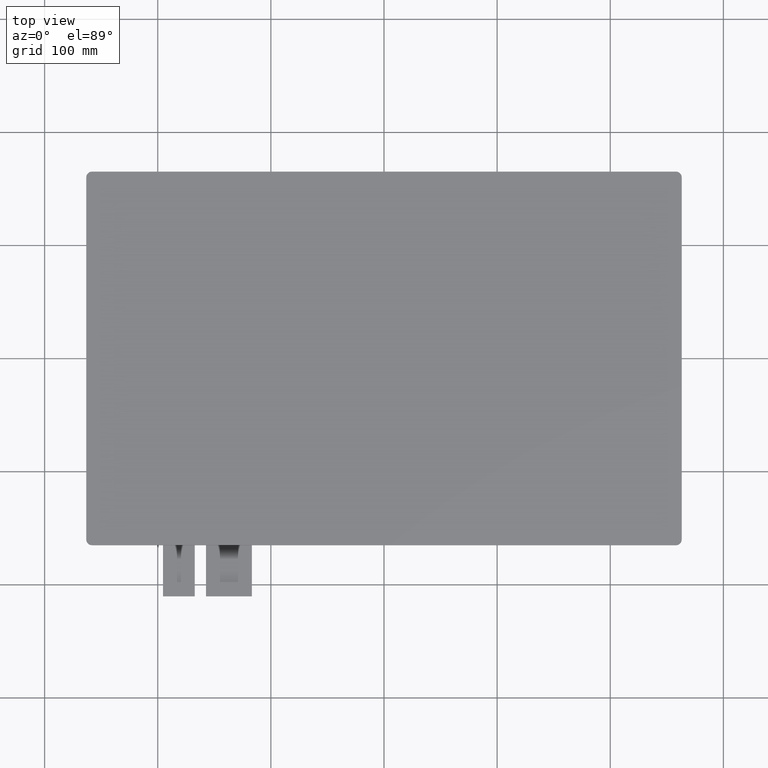
[diagram: clean part render]
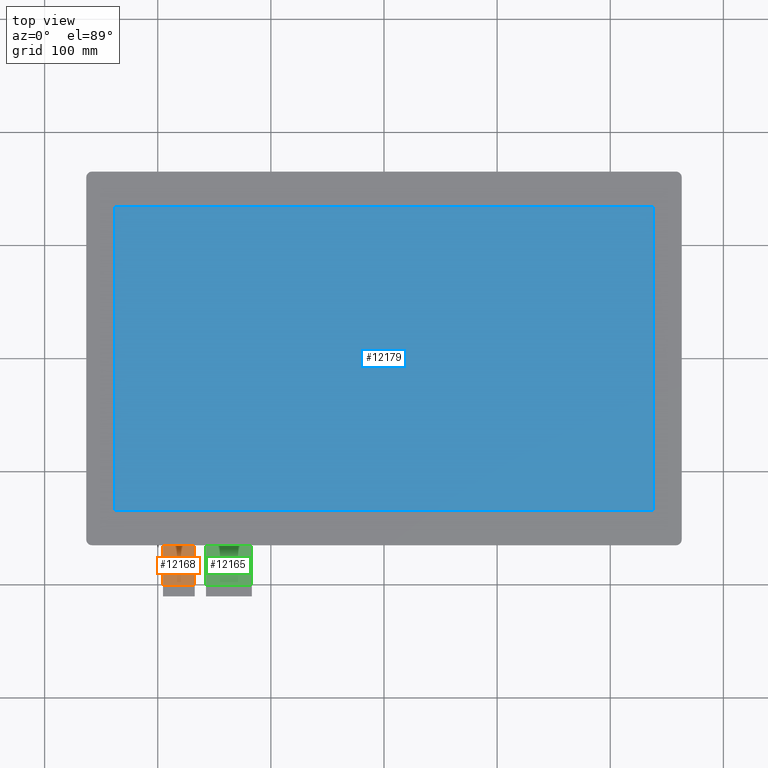
[diagram: same view with three faces highlighted in distinct colors, each labeled with its STEP entity id]
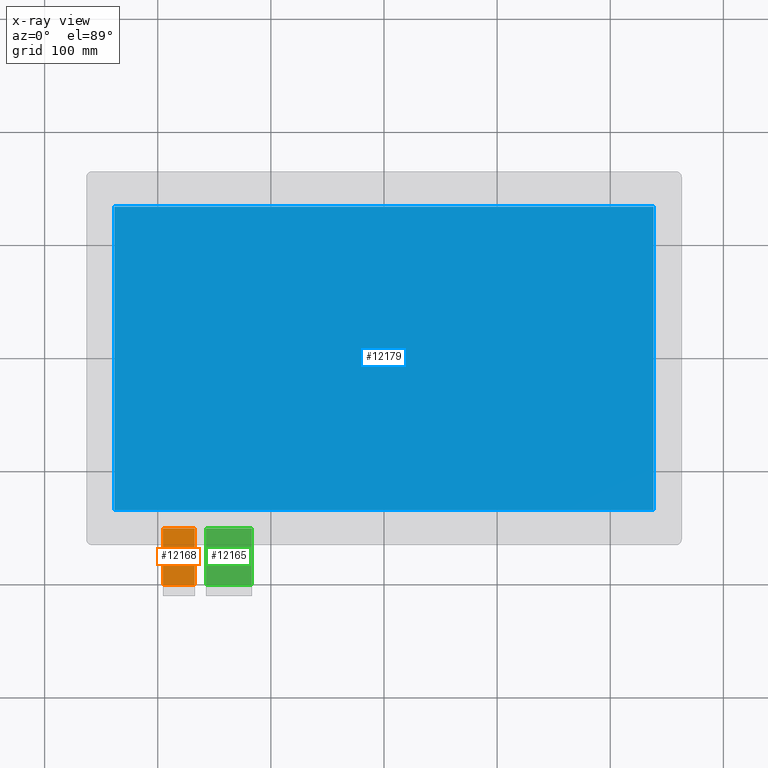
[diagram: x-ray of the same camera — body ghosted, the three highlighted faces saturated]
A machine part, top view with three faces highlighted in distinct colors.
The next image is the same camera in x-ray (body ghosted, the three faces saturated) — at least one of them is partly hidden behind the body in this view.
Their STEP definitions:

[orange] entity #12168 — the highlighted planar face has unit normal (0, 0, 1).
#608=PLANE('',#12782);
#1188=FACE_OUTER_BOUND('',#1772,.T.);
#1772=EDGE_LOOP('',(#11483,#11484,#11485,#11486));
#3448=LINE('',#19050,#5164);
#3459=LINE('',#19072,#5175);
#3469=LINE('',#19091,#5185);
#3470=LINE('',#19093,#5186);
#5164=VECTOR('',#15584,10.);
#5175=VECTOR('',#15603,10.);
#5185=VECTOR('',#15623,10.);
#5186=VECTOR('',#15626,10.);
#6354=VERTEX_POINT('',#19047);
#6355=VERTEX_POINT('',#19049);
#6362=VERTEX_POINT('',#19071);
#6366=VERTEX_POINT('',#19089);
#8060=EDGE_CURVE('',#6355,#6354,#3448,.T.);
#8071=EDGE_CURVE('',#6354,#6362,#3459,.T.);
#8081=EDGE_CURVE('',#6362,#6366,#3469,.T.);
#8082=EDGE_CURVE('',#6355,#6366,#3470,.T.);
#11483=ORIENTED_EDGE('',*,*,#8071,.T.);
#11484=ORIENTED_EDGE('',*,*,#8081,.T.);
#11485=ORIENTED_EDGE('',*,*,#8082,.F.);
#11486=ORIENTED_EDGE('',*,*,#8060,.T.);
#12168=ADVANCED_FACE('',(#1188),#608,.T.);
#12782=AXIS2_PLACEMENT_3D('',#19092,#15624,#15625);
#15584=DIRECTION('',(1.1842378929335E-15,-1.,0.));
#15603=DIRECTION('',(1.,0.,0.));
#15623=DIRECTION('',(0.,1.,0.));
#15624=DIRECTION('center_axis',(0.,0.,1.));
#15625=DIRECTION('ref_axis',(1.,0.,0.));
#15626=DIRECTION('',(1.,1.0748427830175E-16,0.));
#19047=CARTESIAN_POINT('',(-195.35,-200.35,-1.25));
#19049=CARTESIAN_POINT('',(-195.35,-150.35,-1.25));
#19050=CARTESIAN_POINT('',(-195.35,-150.35,-1.25));
#19071=CARTESIAN_POINT('',(-167.35,-200.35,-1.25));
#19072=CARTESIAN_POINT('',(-174.35,-200.35,-1.25));
#19089=CARTESIAN_POINT('',(-167.35,-150.35,-1.25));
#19091=CARTESIAN_POINT('',(-167.35,-210.35,-1.25));
#19092=CARTESIAN_POINT('Origin',(-181.35,-180.35,-1.25));
#19093=CARTESIAN_POINT('',(32.15,-150.35,-1.25));

[blue] entity #12179 — the highlighted planar face has unit normal (0, 0, 1).
#615=PLANE('',#12801);
#1199=FACE_OUTER_BOUND('',#1785,.T.);
#1785=EDGE_LOOP('',(#11543,#11544,#11545,#11546));
#3479=LINE('',#19123,#5195);
#3480=LINE('',#19125,#5196);
#3481=LINE('',#19127,#5197);
#3482=LINE('',#19128,#5198);
#5195=VECTOR('',#15651,10.);
#5196=VECTOR('',#15652,10.);
#5197=VECTOR('',#15653,10.);
#5198=VECTOR('',#15654,10.);
#6378=VERTEX_POINT('',#19121);
#6379=VERTEX_POINT('',#19122);
#6380=VERTEX_POINT('',#19124);
#6381=VERTEX_POINT('',#19126);
#8096=EDGE_CURVE('',#6378,#6379,#3479,.T.);
#8097=EDGE_CURVE('',#6380,#6378,#3480,.T.);
#8098=EDGE_CURVE('',#6381,#6380,#3481,.T.);
#8099=EDGE_CURVE('',#6379,#6381,#3482,.T.);
#11543=ORIENTED_EDGE('',*,*,#8096,.T.);
#11544=ORIENTED_EDGE('',*,*,#8099,.T.);
#11545=ORIENTED_EDGE('',*,*,#8098,.T.);
#11546=ORIENTED_EDGE('',*,*,#8097,.T.);
#12179=ADVANCED_FACE('',(#1199),#615,.T.);
#12801=AXIS2_PLACEMENT_3D('',#19160,#15687,#15688);
#15651=DIRECTION('',(0.,1.,0.));
#15652=DIRECTION('',(1.,0.,0.));
#15653=DIRECTION('',(0.,-1.,0.));
#15654=DIRECTION('',(-1.,0.,0.));
#15687=DIRECTION('center_axis',(0.,0.,1.));
#15688=DIRECTION('ref_axis',(1.,0.,0.));
#19121=CARTESIAN_POINT('',(238.35,-134.05,1.8));
#19122=CARTESIAN_POINT('',(238.35,134.05,1.8));
#19123=CARTESIAN_POINT('',(238.35,-67.025,1.8));
#19124=CARTESIAN_POINT('',(-238.35,-134.05,1.8));
#19125=CARTESIAN_POINT('',(-119.175,-134.05,1.8));
#19126=CARTESIAN_POINT('',(-238.35,134.05,1.8));
#19127=CARTESIAN_POINT('',(-238.35,67.025,1.8));
#19128=CARTESIAN_POINT('',(119.175,134.05,1.8));
#19160=CARTESIAN_POINT('Origin',(-3.5527136788005E-14,3.5527136788005E-14,
1.8));

[green] entity #12165 — the highlighted planar face has unit normal (0, 0, 1).
#605=PLANE('',#12779);
#1185=FACE_OUTER_BOUND('',#1769,.T.);
#1769=EDGE_LOOP('',(#11467,#11468,#11469,#11470));
#3452=LINE('',#19058,#5168);
#3455=LINE('',#19064,#5171);
#3465=LINE('',#19083,#5181);
#3466=LINE('',#19085,#5182);
#5168=VECTOR('',#15590,10.);
#5171=VECTOR('',#15595,10.);
#5181=VECTOR('',#15613,10.);
#5182=VECTOR('',#15616,10.);
#6357=VERTEX_POINT('',#19055);
#6358=VERTEX_POINT('',#19057);
#6360=VERTEX_POINT('',#19063);
#6365=VERTEX_POINT('',#19081);
#8064=EDGE_CURVE('',#6358,#6357,#3452,.T.);
#8067=EDGE_CURVE('',#6357,#6360,#3455,.T.);
#8077=EDGE_CURVE('',#6360,#6365,#3465,.T.);
#8078=EDGE_CURVE('',#6358,#6365,#3466,.T.);
#11467=ORIENTED_EDGE('',*,*,#8067,.T.);
#11468=ORIENTED_EDGE('',*,*,#8077,.T.);
#11469=ORIENTED_EDGE('',*,*,#8078,.F.);
#11470=ORIENTED_EDGE('',*,*,#8064,.T.);
#12165=ADVANCED_FACE('',(#1185),#605,.T.);
#12779=AXIS2_PLACEMENT_3D('',#19084,#15614,#15615);
#15590=DIRECTION('',(5.9211894646675E-16,-1.,0.));
#15595=DIRECTION('',(1.,0.,0.));
#15613=DIRECTION('',(1.48029736616688E-15,1.,0.));
#15614=DIRECTION('center_axis',(0.,0.,1.));
#15615=DIRECTION('ref_axis',(1.,0.,0.));
#15616=DIRECTION('',(1.,1.0748427830175E-16,0.));
#19055=CARTESIAN_POINT('',(-157.35,-200.35,-1.25));
#19057=CARTESIAN_POINT('',(-157.35,-150.35,-1.25));
#19058=CARTESIAN_POINT('',(-157.35,-150.35,-1.25));
#19063=CARTESIAN_POINT('',(-116.85,-200.35,-1.25));
#19064=CARTESIAN_POINT('',(-126.975,-200.35,-1.25));
#19081=CARTESIAN_POINT('',(-116.85,-150.35,-1.25));
#19083=CARTESIAN_POINT('',(-116.85,-210.35,-1.25));
#19084=CARTESIAN_POINT('Origin',(-137.1,-180.35,-1.25));
#19085=CARTESIAN_POINT('',(54.2750000000001,-150.35,-1.25));